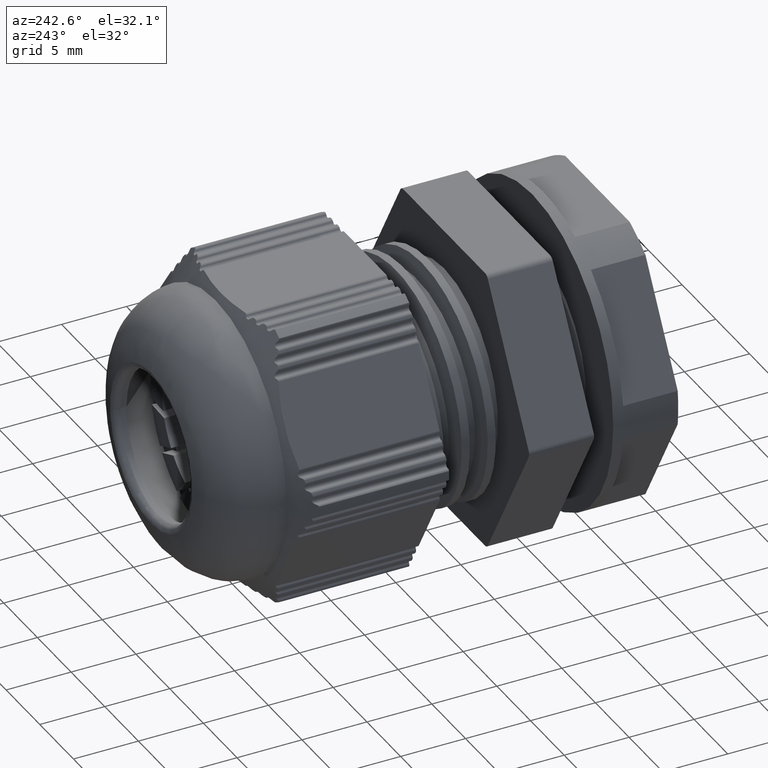
[diagram: clean part render]
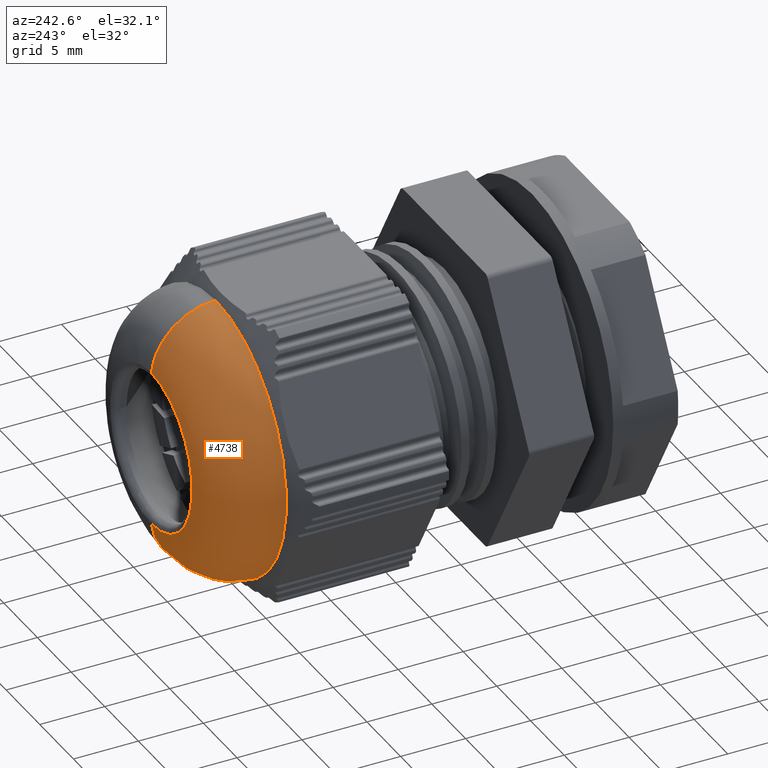
[diagram: same view with one face highlighted and labeled with its STEP entity id]
A machine part, auxiliary view. The second image highlights one B-rep face of the part: STEP entity #4738.
In plain terms, the highlighted face is a freeform B-spline surface patch.
Its self-contained STEP definition (entity closure, byte-faithful):
#63 =( BOUNDED_SURFACE ( )  B_SPLINE_SURFACE ( 3, 3, ( 
 ( #13312, #13250, #13304, #13295 ),
 ( #13252, #13255, #13258, #13274 ),
 ( #13291, #13298, #13229, #13231 ),
 ( #13234, #13372, #13392, #13364 ) ),
 .UNSPECIFIED., .F., .F., .T. ) 
 B_SPLINE_SURFACE_WITH_KNOTS ( ( 4, 4 ),
 ( 4, 4 ),
 ( 0.0000000000000000000, 1.000000000000000000 ),
 ( 0.0000000000000000000, 1.000000000000000000 ),
 .UNSPECIFIED. ) 
 GEOMETRIC_REPRESENTATION_ITEM ( )  RATIONAL_B_SPLINE_SURFACE ( (
 ( 1.000000000000000000, 0.3333333333333334300, 0.3333333333333334300, 1.000000000000000000),
 ( 0.8317681836564869700, 0.2772560612188290600, 0.2772560612188290600, 0.8317681836564869700),
 ( 0.8317681836564869700, 0.2772560612188290600, 0.2772560612188290600, 0.8317681836564869700),
 ( 1.000000000000000000, 0.3333333333333334300, 0.3333333333333334300, 1.000000000000000000) ) ) 
 REPRESENTATION_ITEM ( '' )  SURFACE ( )  );
#431 = CIRCLE ( 'NONE', #456, 6.089839250374960300 ) ;
#454 = CIRCLE ( 'NONE', #457, 10.49999999999999300 ) ;
#456 = AXIS2_PLACEMENT_3D ( 'NONE', #1543, #1528, #1539 ) ;
#457 = AXIS2_PLACEMENT_3D ( 'NONE', #1602, #1603, #1597 ) ;
#474 = CIRCLE ( 'NONE', #475, 5.000000000000004400 ) ;
#475 = AXIS2_PLACEMENT_3D ( 'NONE', #1585, #1592, #1581 ) ;
#480 = CIRCLE ( 'NONE', #521, 5.000000000000004400 ) ;
#521 = AXIS2_PLACEMENT_3D ( 'NONE', #1635, #1638, #1671 ) ;
#1528 = DIRECTION ( 'NONE',  ( 0.0000000000000000000, 1.000000000000000000, 0.0000000000000000000 ) ) ;
#1539 = DIRECTION ( 'NONE',  ( 0.0000000000000000000, 0.0000000000000000000, 1.000000000000000000 ) ) ;
#1543 = CARTESIAN_POINT ( 'NONE',  ( -1.734723475976807100E-015, 21.24946620140077900, -1.301042606982605300E-015 ) ) ;
#1581 = DIRECTION ( 'NONE',  ( 0.0000000000000000000, 0.0000000000000000000, 1.000000000000000000 ) ) ;
#1585 = CARTESIAN_POINT ( 'NONE',  ( -1.734723475976807100E-015, 16.28437912676481900, 5.500000000000003600 ) ) ;
#1592 = DIRECTION ( 'NONE',  ( 1.000000000000000000, -1.424276901783573600E-016, -4.706145862505669000E-032 ) ) ;
#1597 = DIRECTION ( 'NONE',  ( -2.934750391447218400E-031, 6.608470384673555000E-016, -1.000000000000000000 ) ) ;
#1602 = CARTESIAN_POINT ( 'NONE',  ( -1.932456287033367600E-014, 16.28437912676482600, 5.273944345041423700E-015 ) ) ;
#1603 = DIRECTION ( 'NONE',  ( -4.165047355997329800E-016, -1.000000000000000000, -6.247571033995995700E-016 ) ) ;
#1635 = CARTESIAN_POINT ( 'NONE',  ( -1.061167736445762800E-015, 16.28437912676482200, -5.500000000000008000 ) ) ;
#1638 = DIRECTION ( 'NONE',  ( -1.000000000000000000, 1.424276901783574100E-016, -1.224646799147352700E-016 ) ) ;
#1671 = DIRECTION ( 'NONE',  ( 1.224646799147353900E-016, 6.938893903907222500E-016, -1.000000000000000000 ) ) ;
#3057 = CARTESIAN_POINT ( 'NONE',  ( -1.734723475976807100E-015, 21.24946620140077900, 6.089839250374958500 ) ) ;
#3063 = CARTESIAN_POINT ( 'NONE',  ( -3.653058573723550800E-016, 21.24946620140077900, -6.089839250374962100 ) ) ;
#3081 = CARTESIAN_POINT ( 'NONE',  ( -1.822891203332152700E-014, 16.28437912676481900, 10.49999999999999800 ) ) ;
#3103 = CARTESIAN_POINT ( 'NONE',  ( -1.932456287033367900E-014, 16.28437912676483300, -10.49999999999998900 ) ) ;
#4738 = ADVANCED_FACE ( 'NONE', ( #13268 ), #63, .T. ) ;
#9171 = EDGE_LOOP ( 'NONE', ( #12936, #12891, #12947, #12941 ) ) ;
#10901 = EDGE_CURVE ( 'NONE', #12433, #14129, #431, .T. ) ;
#10910 = EDGE_CURVE ( 'NONE', #14129, #14156, #474, .T. ) ;
#10915 = EDGE_CURVE ( 'NONE', #14156, #14194, #454, .T. ) ;
#10926 = EDGE_CURVE ( 'NONE', #12433, #14194, #480, .T. ) ;
#12433 = VERTEX_POINT ( 'NONE', #3063 ) ;
#12891 = ORIENTED_EDGE ( 'NONE', *, *, #10926, .T. ) ;
#12936 = ORIENTED_EDGE ( 'NONE', *, *, #10901, .F. ) ;
#12941 = ORIENTED_EDGE ( 'NONE', *, *, #10910, .F. ) ;
#12947 = ORIENTED_EDGE ( 'NONE', *, *, #10915, .F. ) ;
#13229 = CARTESIAN_POINT ( 'NONE',  ( -21.00000000000002100, 18.94573928610934000, 10.50000000000000400 ) ) ;
#13231 = CARTESIAN_POINT ( 'NONE',  ( -3.927430373958107200E-015, 18.94573928610933700, 10.50000000000000900 ) ) ;
#13234 = CARTESIAN_POINT ( 'NONE',  ( -4.488443368720858700E-016, 16.28437912676481900, -10.50000000000001200 ) ) ;
#13250 = CARTESIAN_POINT ( 'NONE',  ( -12.17967850074991500, 21.24946620140079300, -6.089839250374963000 ) ) ;
#13252 = CARTESIAN_POINT ( 'NONE',  ( -2.836416635809048700E-018, 20.93551126512768300, -8.732616235997481300 ) ) ;
#13255 = CARTESIAN_POINT ( 'NONE',  ( -17.46523247199495500, 20.93551126512768300, -8.732616235997484800 ) ) ;
#13258 = CARTESIAN_POINT ( 'NONE',  ( -17.46523247199495900, 20.93551126512768000, 8.732616235997474200 ) ) ;
#13268 = FACE_OUTER_BOUND ( 'NONE', #9171, .T. ) ;
#13274 = CARTESIAN_POINT ( 'NONE',  ( -3.211147573114765800E-015, 20.93551126512768000, 8.732616235997479500 ) ) ;
#13291 = CARTESIAN_POINT ( 'NONE',  ( -6.979295664394007100E-017, 18.94573928610933700, -10.50000000000001200 ) ) ;
#13295 = CARTESIAN_POINT ( 'NONE',  ( -2.519138021460711400E-015, 21.24946620140078600, 6.089839250374959400 ) ) ;
#13298 = CARTESIAN_POINT ( 'NONE',  ( -21.00000000000002100, 18.94573928610934400, -10.50000000000001600 ) ) ;
#13304 = CARTESIAN_POINT ( 'NONE',  ( -12.17967850074992100, 21.24946620140078900, 6.089839250374955900 ) ) ;
#13312 = CARTESIAN_POINT ( 'NONE',  ( -2.817673778726278900E-016, 21.24946620140078900, -6.089839250374962100 ) ) ;
#13364 = CARTESIAN_POINT ( 'NONE',  ( -4.306481754186251500E-015, 16.28437912676481500, 10.50000000000000700 ) ) ;
#13372 = CARTESIAN_POINT ( 'NONE',  ( -21.00000000000001400, 16.28437912676482200, -10.50000000000001400 ) ) ;
#13392 = CARTESIAN_POINT ( 'NONE',  ( -21.00000000000002500, 16.28437912676481900, 10.50000000000000200 ) ) ;
#14129 = VERTEX_POINT ( 'NONE', #3057 ) ;
#14156 = VERTEX_POINT ( 'NONE', #3081 ) ;
#14194 = VERTEX_POINT ( 'NONE', #3103 ) ;